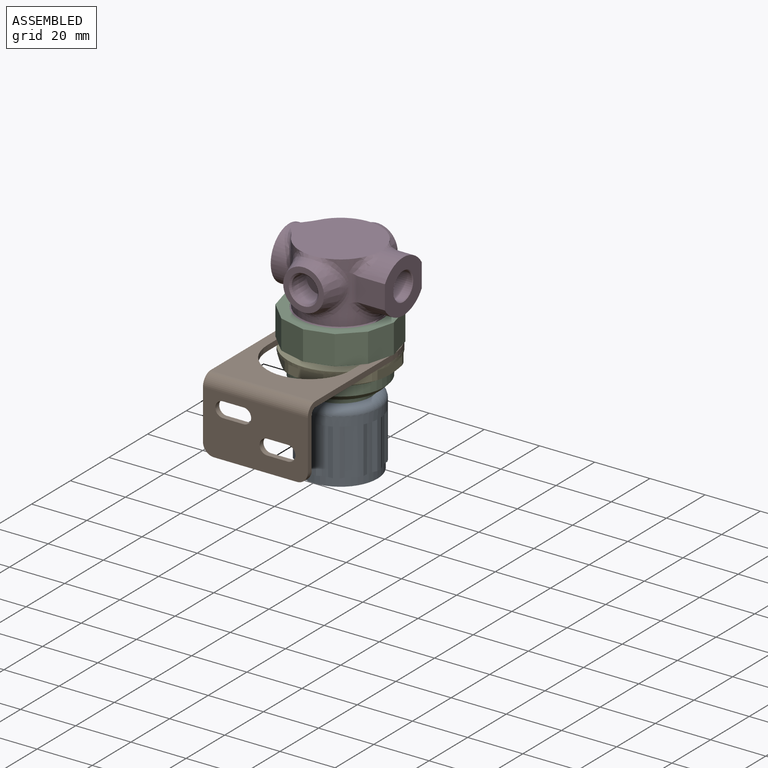
[diagram: assembled view]
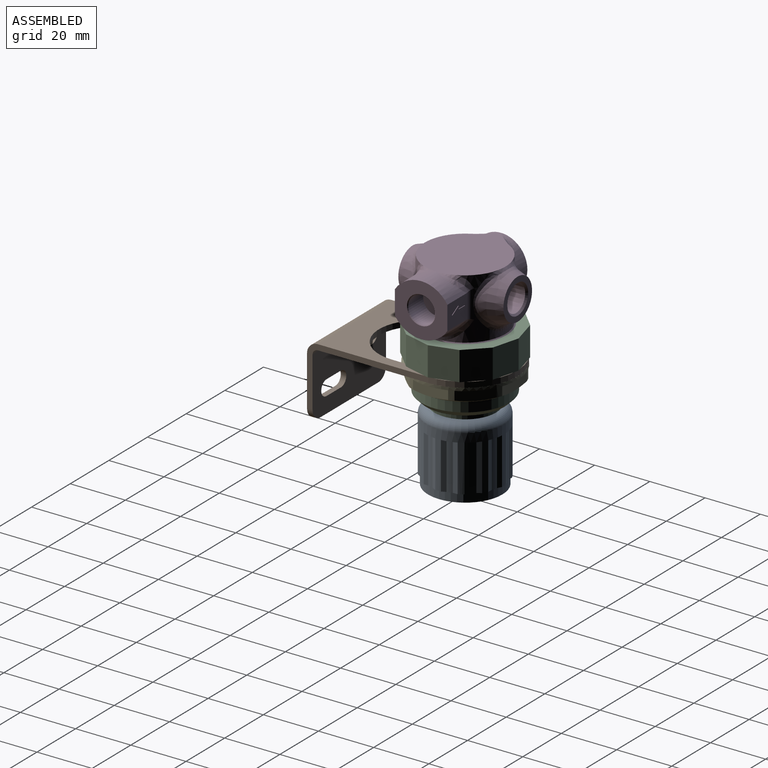
[diagram: assembled view, second angle]
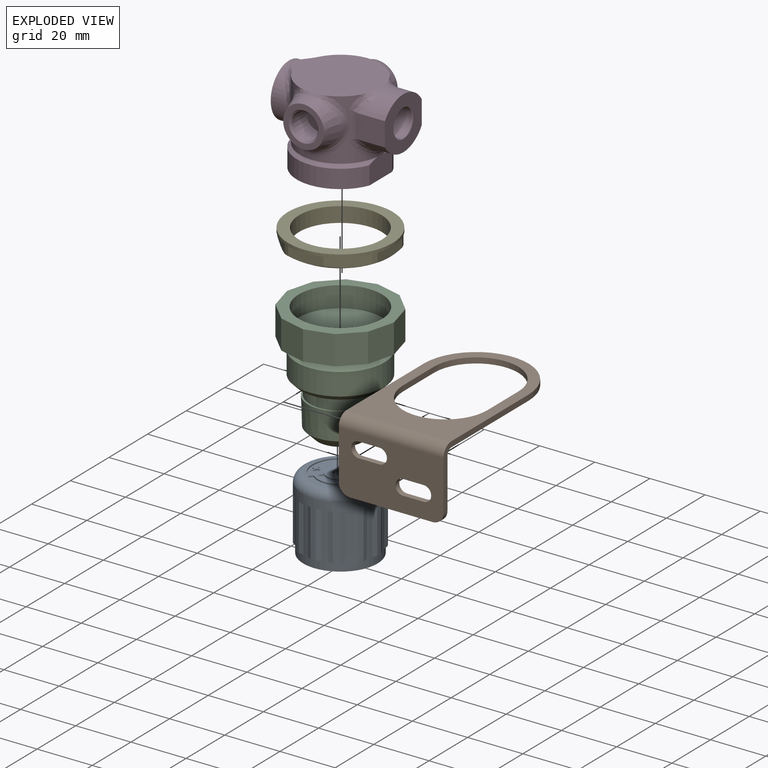
[diagram: exploded view]
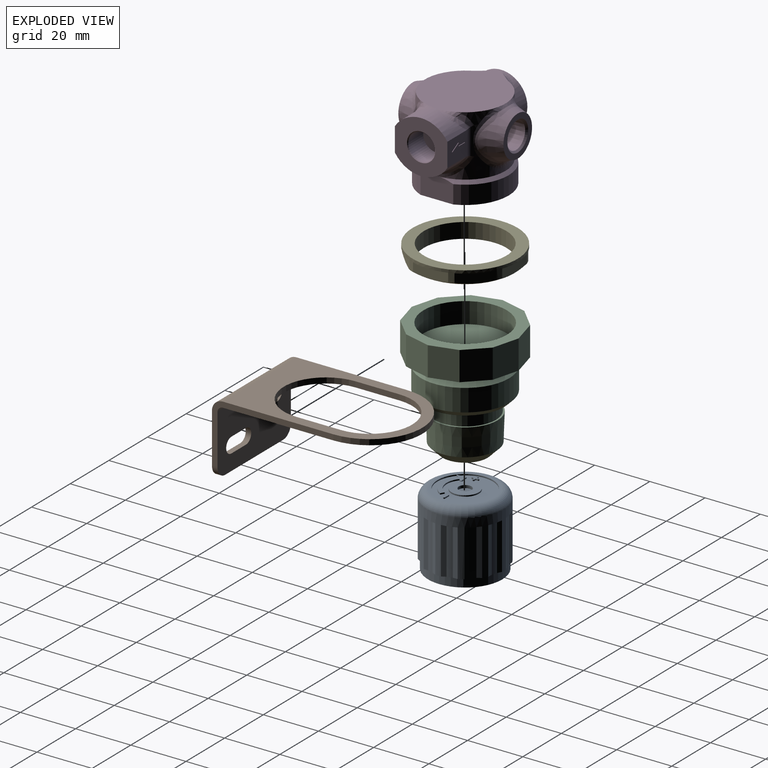
[diagram: exploded view, second angle]
ASSEMBLY  parts=5 mates=4
PART A: 86 faces, bbox 30.5x30.5x26.2 mm
  f0: cylinder r=2.29mm len=4.57mm, axis (0,0,1), area 14.4mm2, adj f61,f85
  f1: cylinder r=6.73mm len=10.15mm, axis (0,0,-1), area 5.3mm2, adj f9,f79,f83,f84
  f2: cylinder r=8.26mm len=12.46mm, axis (0,0,-1), area 6.5mm2, adj f9,f79,f80,f84
  f3: cylinder r=0.33mm len=0.66mm, axis (0,0,-1), area 0.5mm2, adj f9,f74,f75,f78
  f4: cylinder r=4.96mm len=9.91mm, axis (0,0,1), area 14mm2, adj f9,f61
  f5: cylinder r=10.04mm len=20.07mm, axis (0,0,1), area 28.4mm2, adj f9,f12
  f6: torus R=10.91mm, axis (0,0,-1), area 406.1mm2, adj f7,f12
  f7: cylinder r=14.1mm len=28.19mm, axis (0,0,-1), area 692.5mm2, adj f6,f11,f13,f15,f16,f17,f19,f20
  f8: cylinder r=13.46mm len=26.92mm, axis (0,0,-1), area 253.7mm2, adj f10,f11
  f9: plane 20.07x20.07mm, normal (0,0,1), area 208.7mm2, adj f1,f2,f3,f4,f5,f62,f63,f64
  f10: plane 26.92x26.92mm, normal (0,0,-1), area 569.2mm2, adj f8
  f11: plane 28.19x28.19mm, normal (0,0,-1), area 28.1mm2, adj f7,f8,f13,f14,f15,f17,f18,f19
  f12: plane 21.83x21.83mm, normal (0,0,1), area 57.9mm2, adj f5,f6
  f13: plane 16.89x1.49mm, normal (-0.47,0.88,0), area 28.5mm2, adj f7,f11,f14,f16
  f14: cylinder r=13.5mm len=16.89mm, axis (0,0,1), area 34.2mm2, adj f11,f13,f15,f16
  f15: plane 16.89x1.69mm, normal (-0.03,1,0), area 28.5mm2, adj f7,f11,f14,f16
  f16: plane 5.14x1.38mm, normal (0,0,-1), area 2.2mm2, adj f7,f13,f14,f15
  f17: plane 16.89x1.43mm, normal (-0.85,0.53,0), area 28.5mm2, adj f7,f11,f18,f20
  f18: cylinder r=13.5mm len=16.89mm, axis (0,0,1), area 34.2mm2, adj f11,f17,f19,f20
  f19: plane 16.89x1.43mm, normal (-0.53,0.85,0), area 28.5mm2, adj f7,f11,f18,f20
  f20: plane 3.76x3.76mm, normal (0,0,-1), area 2.2mm2, adj f7,f17,f18,f19
  f21: plane 16.89x1.69mm, normal (-1,0.03,0), area 28.5mm2, adj f7,f11,f22,f24
  f22: cylinder r=13.5mm len=16.89mm, axis (0,0,1), area 34.2mm2, adj f11,f21,f23,f24
  f23: plane 16.89x1.49mm, normal (-0.88,0.47,0), area 28.5mm2, adj f7,f11,f22,f24
  f24: plane 5.14x1.38mm, normal (0,0,-1), area 2.2mm2, adj f7,f21,f22,f23
  f25: plane 16.89x1.49mm, normal (-0.88,-0.47,0), area 28.5mm2, adj f7,f11,f26,f28
  f26: cylinder r=13.5mm len=16.89mm, axis (0,0,1), area 34.2mm2, adj f11,f25,f27,f28
  f27: plane 16.89x1.69mm, normal (-1,-0.03,0), area 28.5mm2, adj f7,f11,f26,f28
  f28: plane 5.14x1.38mm, normal (0,0,-1), area 2.2mm2, adj f7,f25,f26,f27
  f29: plane 16.89x1.43mm, normal (-0.53,-0.85,0), area 28.5mm2, adj f7,f11,f30,f32
  f30: cylinder r=13.5mm len=16.89mm, axis (0,0,1), area 34.2mm2, adj f11,f29,f31,f32
  f31: plane 16.89x1.43mm, normal (-0.85,-0.53,0), area 28.5mm2, adj f7,f11,f30,f32
  f32: plane 3.76x3.76mm, normal (0,0,-1), area 2.2mm2, adj f7,f29,f30,f31
  f33: plane 16.89x1.69mm, normal (-0.03,-1,0), area 28.5mm2, adj f7,f11,f34,f36
  f34: cylinder r=13.5mm len=16.89mm, axis (0,0,1), area 34.2mm2, adj f11,f33,f35,f36
  f35: plane 16.89x1.49mm, normal (-0.47,-0.88,0), area 28.5mm2, adj f7,f11,f34,f36
  f36: plane 5.14x1.38mm, normal (0,0,-1), area 2.2mm2, adj f7,f33,f34,f35
  f37: plane 16.89x1.49mm, normal (0.47,-0.88,0), area 28.5mm2, adj f7,f11,f38,f40
  f38: cylinder r=13.5mm len=16.89mm, axis (0,0,1), area 34.2mm2, adj f11,f37,f39,f40
  f39: plane 16.89x1.69mm, normal (0.03,-1,0), area 28.5mm2, adj f7,f11,f38,f40
  f40: plane 5.14x1.38mm, normal (0,0,-1), area 2.2mm2, adj f7,f37,f38,f39
  f41: plane 16.89x1.43mm, normal (0.85,-0.53,0), area 28.5mm2, adj f7,f11,f42,f44
  f42: cylinder r=13.5mm len=16.89mm, axis (0,0,1), area 34.2mm2, adj f11,f41,f43,f44
  f43: plane 16.89x1.43mm, normal (0.53,-0.85,0), area 28.5mm2, adj f7,f11,f42,f44
  f44: plane 3.76x3.76mm, normal (0,0,-1), area 2.2mm2, adj f7,f41,f42,f43
  f45: plane 16.89x1.69mm, normal (1,-0.03,0), area 28.5mm2, adj f7,f11,f46,f48
  f46: cylinder r=13.5mm len=16.89mm, axis (0,0,1), area 34.2mm2, adj f11,f45,f47,f48
  f47: plane 16.89x1.49mm, normal (0.88,-0.47,0), area 28.5mm2, adj f7,f11,f46,f48
  f48: plane 5.14x1.38mm, normal (0,0,-1), area 2.2mm2, adj f7,f45,f46,f47
  f49: plane 16.89x1.49mm, normal (0.88,0.47,0), area 28.5mm2, adj f7,f11,f50,f52
  f50: cylinder r=13.5mm len=16.89mm, axis (0,0,1), area 34.2mm2, adj f11,f49,f51,f52
  f51: plane 16.89x1.69mm, normal (1,0.03,0), area 28.5mm2, adj f7,f11,f50,f52
  f52: plane 5.14x1.38mm, normal (0,0,-1), area 2.2mm2, adj f7,f49,f50,f51
  f53: plane 16.89x1.43mm, normal (0.53,0.85,0), area 28.5mm2, adj f7,f11,f54,f56
  f54: cylinder r=13.5mm len=16.89mm, axis (0,0,1), area 34.2mm2, adj f11,f53,f55,f56
  f55: plane 16.89x1.43mm, normal (0.85,0.53,0), area 28.5mm2, adj f7,f11,f54,f56
  f56: plane 3.76x3.76mm, normal (0,0,-1), area 2.2mm2, adj f7,f53,f54,f55
  f57: plane 16.89x1.69mm, normal (0.03,1,0), area 28.5mm2, adj f7,f11,f58,f60
  f58: cylinder r=13.5mm len=16.89mm, axis (0,0,1), area 34.2mm2, adj f11,f57,f59,f60
  f59: plane 16.89x1.49mm, normal (0.47,0.88,0), area 28.5mm2, adj f7,f11,f58,f60
  f60: plane 5.14x1.38mm, normal (0,0,-1), area 2.2mm2, adj f7,f57,f58,f59
  f61: plane 9.91x9.91mm, normal (0,0,1), area 60.7mm2, adj f0,f4
  f62: plane 2.06x0.45mm, normal (0,1,0), area 0.9mm2, adj f9,f63,f65,f66
  f63: cylinder r=0.33mm len=0.66mm, axis (0,0,-1), area 0.5mm2, adj f9,f62,f64,f66
  f64: plane 2.06x0.45mm, normal (0,-1,0), area 0.9mm2, adj f9,f63,f65,f66
  f65: cylinder r=0.33mm len=0.66mm, axis (0,0,-1), area 0.5mm2, adj f9,f62,f64,f66
  f66: plane 2.72x0.66mm, normal (0,0,1), area 1.7mm2, adj f62,f63,f64,f65
  f67: plane 0.7x0.45mm, normal (0,-1,0), area 0.3mm2, adj f9,f68,f77,f78
  f68: plane 0.7x0.45mm, normal (1,0,0), area 0.3mm2, adj f9,f67,f69,f78
  f69: cylinder r=0.33mm len=0.66mm, axis (0,0,-1), area 0.5mm2, adj f9,f68,f70,f78
  f70: plane 0.7x0.45mm, normal (-1,0,0), area 0.3mm2, adj f9,f69,f71,f78
  f71: plane 0.7x0.45mm, normal (0,-1,0), area 0.3mm2, adj f9,f70,f72,f78
  f72: cylinder r=0.33mm len=0.66mm, axis (0,0,-1), area 0.5mm2, adj f9,f71,f73,f78
  f73: plane 0.7x0.45mm, normal (0,1,0), area 0.3mm2, adj f9,f72,f74,f78
  f74: plane 0.7x0.45mm, normal (-1,0,0), area 0.3mm2, adj f3,f9,f73,f78
  f75: plane 0.7x0.45mm, normal (1,0,0), area 0.3mm2, adj f3,f9,f76,f78
  f76: plane 0.7x0.45mm, normal (0,1,0), area 0.3mm2, adj f9,f75,f77,f78
  f77: cylinder r=0.33mm len=0.66mm, axis (0,0,-1), area 0.5mm2, adj f9,f67,f76,f78
  f78: plane 2.72x2.72mm, normal (0,0,1), area 3mm2, adj f3,f67,f68,f69,f70,f71,f72,f73
  f79: plane 1.33x0.77mm, normal (-0.5,-0.87,0), area 0.7mm2, adj f1,f2,f9,f84
  f80: plane 1.26x1.06mm, normal (-0.77,0.64,0), area 0.7mm2, adj f2,f9,f81,f84
  f81: plane 3.4x0.45mm, normal (1,0.09,0), area 1.5mm2, adj f9,f80,f82,f84
  f82: plane 3.4x0.45mm, normal (0.09,-1,0), area 1.5mm2, adj f9,f81,f83,f84
  f83: plane 1.26x1.06mm, normal (-0.77,0.64,0), area 0.7mm2, adj f1,f9,f82,f84
  f84: plane 13.82x4.9mm, normal (0,0,1), area 25.8mm2, adj f1,f2,f79,f80,f81,f82,f83
  f85: plane 4.57x4.57mm, normal (0,0,1), area 16.4mm2, adj f0
PART B: 24 faces, bbox 38x63x26 mm
  f0: cylinder r=2.75mm len=5.5mm, axis (0,-1,0), area 17.3mm2, adj f13,f14,f20,f21
  f1: cylinder r=2.75mm len=5.5mm, axis (0,-1,0), area 17.3mm2, adj f13,f14,f17,f18
  f2: cylinder r=15.25mm len=30.5mm, axis (0,0,-1), area 95.8mm2, adj f3,f4,f9,f10
  f3: plane 59x38mm, normal (0,0,1), area 868.4mm2, adj f2,f5,f6,f7,f8,f9,f10,f12
  f4: plane 59x38mm, normal (0,0,-1), area 868.4mm2, adj f2,f5,f6,f7,f8,f9,f10,f11
  f5: plane 44x22mm, normal (-1,0,0), area 125.4mm2, adj f3,f4,f7,f11,f12,f13,f14,f23
  f6: plane 44x22mm, normal (1,0,0), area 125.4mm2, adj f3,f4,f7,f11,f12,f13,f14,f22
  f7: cylinder r=19mm len=38mm, axis (0,0,-1), area 119.4mm2, adj f3,f4,f5,f6
  f8: cylinder r=15.25mm len=30.5mm, axis (0,0,-1), area 95.8mm2, adj f3,f4,f9,f10
  f9: plane 16x2mm, normal (-1,0,0), area 32mm2, adj f2,f3,f4,f8
  f10: plane 16x2mm, normal (1,0,0), area 32mm2, adj f2,f3,f4,f8
  f11: cylinder r=4mm len=38mm, axis (-1,0,0), area 238.8mm2, adj f4,f5,f6,f13
  f12: cylinder r=2mm len=38mm, axis (-1,0,0), area 119.4mm2, adj f3,f5,f6,f14
  f13: plane 38x22mm, normal (0,1,0), area 699.6mm2, adj f0,f1,f5,f6,f11,f15,f16,f17
  f14: plane 38x22mm, normal (0,-1,0), area 699.6mm2, adj f0,f1,f5,f6,f12,f15,f16,f17
  f15: plane 30x2mm, normal (0,0,1), area 60mm2, adj f13,f14,f22,f23
  f16: cylinder r=2.75mm len=5.5mm, axis (0,-1,0), area 17.3mm2, adj f13,f14,f17,f18
  f17: plane 7.46x2mm, normal (0,0,-1), area 14.9mm2, adj f1,f13,f14,f16
  f18: plane 7.46x2mm, normal (0,0,1), area 14.9mm2, adj f1,f13,f14,f16
  f19: cylinder r=2.75mm len=5.5mm, axis (0,-1,0), area 17.3mm2, adj f13,f14,f20,f21
  f20: plane 7.46x2mm, normal (0,0,-1), area 14.9mm2, adj f0,f13,f14,f19
  f21: plane 7.46x2mm, normal (0,0,1), area 14.9mm2, adj f0,f13,f14,f19
  f22: cylinder r=4mm len=4mm, axis (0,-1,0), area 12.6mm2, adj f6,f13,f14,f15
  f23: cylinder r=4mm len=4mm, axis (0,-1,0), area 12.6mm2, adj f5,f13,f14,f15
PART C: 29 faces, bbox 38.7x38.7x42.1 mm
  f0: cylinder r=4mm len=10mm, axis (0,0,1), area 251.3mm2, adj f26,f28
  f1: cylinder r=15.1mm len=30.2mm, axis (0,0,-1), area 715.4mm2, adj f10,f27
  f2: torus R=15.67mm, axis (0,0,1), area 220.6mm2, adj f9,f11
  f3: cone r=8.16mm half-angle=45deg, axis (0,0,-1), area 284mm2, adj f4,f26
  f4: cone r=11.42mm half-angle=2deg, axis (0,0,-1), area 727.8mm2, adj f3,f25
  f5: cylinder r=11.19mm len=22.37mm, axis (0,0,-1), area 351.4mm2, adj f24,f25
  f6: cone r=14.15mm half-angle=45deg, axis (0,0,-1), area 247.8mm2, adj f7,f24
  f7: cylinder r=16mm len=32mm, axis (0,0,-1), area 809.3mm2, adj f6,f8
  f8: cone r=16mm half-angle=45deg, axis (0,0,1), area 247.8mm2, adj f7,f9
  f9: cylinder r=14.15mm len=28.3mm, axis (0,0,-1), area 2.7mm2, adj f2,f8
  f10: plane 38.73x38.73mm, normal (0,0,-1), area 408.7mm2, adj f1,f12,f13,f14,f15,f16,f17,f18
  f11: plane 38.73x38.73mm, normal (0,0,1), area 353.6mm2, adj f2,f12,f13,f14,f15,f16,f17,f18
  f12: plane 10.54x9.68mm, normal (0.26,0.97,0), area 105.7mm2, adj f10,f11,f13,f23
  f13: plane 10.54x7.09mm, normal (0.71,0.71,0), area 105.7mm2, adj f10,f11,f12,f14
  f14: plane 10.54x9.68mm, normal (0.97,0.26,0), area 105.7mm2, adj f10,f11,f13,f15
  f15: plane 10.54x9.68mm, normal (0.97,-0.26,0), area 105.7mm2, adj f10,f11,f14,f16
  f16: plane 10.54x7.09mm, normal (0.71,-0.71,0), area 105.7mm2, adj f10,f11,f15,f17
  f17: plane 10.54x9.68mm, normal (0.26,-0.97,0), area 105.7mm2, adj f10,f11,f16,f18
  f18: plane 10.54x9.68mm, normal (-0.26,-0.97,0), area 105.7mm2, adj f10,f11,f17,f19
  f19: plane 10.54x7.09mm, normal (-0.71,-0.71,0), area 105.7mm2, adj f10,f11,f18,f20
  f20: plane 10.54x9.68mm, normal (-0.97,-0.26,0), area 105.7mm2, adj f10,f11,f19,f21
  f21: plane 10.54x9.68mm, normal (-0.97,0.26,0), area 105.7mm2, adj f10,f11,f20,f22
  f22: plane 10.54x7.09mm, normal (-0.71,0.71,0), area 105.7mm2, adj f10,f11,f21,f23
  f23: plane 10.54x9.68mm, normal (-0.26,0.97,0), area 105.7mm2, adj f10,f11,f12,f22
  f24: plane 28.3x28.3mm, normal (0,0,1), area 236mm2, adj f5,f6
  f25: plane 23.54x23.54mm, normal (0,0,-1), area 42.1mm2, adj f4,f5
  f26: plane 16.31x16.31mm, normal (0,0,1), area 158.7mm2, adj f0,f3
  f27: plane 30.2x30.2mm, normal (0,0,-1), area 716.3mm2, adj f1
  f28: plane 8x8mm, normal (0,0,1), area 50.3mm2, adj f0
PART D: 60 faces, bbox 43.5x40.2x35.2 mm
  f0: cone r=4.52mm half-angle=1.8deg, axis (0,-1,0), area 214.2mm2, adj f1,f47
  f1: cone r=4.75mm half-angle=45deg, axis (0,-1,0), area 28.8mm2, adj f0,f18
  f2: cone r=5.38mm half-angle=45deg, axis (0,1,0), area 28.8mm2, adj f3,f19
  f3: cone r=4.75mm half-angle=1.8deg, axis (0,1,0), area 214.2mm2, adj f2,f46
  f4: cone r=4.87mm half-angle=45deg, axis (-1,0,0), area 11.8mm2, adj f5,f30
  f5: cylinder r=4.87mm len=9.73mm, axis (1,0,0), area 236.4mm2, adj f4,f45
  f6: cylinder r=4.87mm len=9.73mm, axis (1,0,0), area 236.4mm2, adj f7,f44
  f7: cone r=5.13mm half-angle=45deg, axis (1,0,0), area 11.8mm2, adj f6,f29
  f8: cone r=12mm half-angle=18deg, axis (0,-1,0), area 250.8mm2, adj f19,f53,f57
  f9: cone r=12mm half-angle=18deg, axis (0,1,0), area 251mm2, adj f18,f56,f58
  f10: cylinder r=9.52mm len=19.05mm, axis (1,0,0), area 193.5mm2, adj f23,f30,f48,f59
  f11: cylinder r=15.8mm len=29.29mm, axis (0,0,-1), area 249.3mm2, adj f24,f25,f40,f43
  f12: cone r=15.8mm half-angle=45deg, axis (0,0,1), area 65.5mm2, adj f16,f20,f31,f40,f42,f43
  f13: cylinder r=14.67mm len=29.08mm, axis (0,0,-1), area 145.6mm2, adj f24,f31,f54,f57,f59
  f14: cylinder r=14.67mm len=7.41mm, axis (0,0,-1), area 37.3mm2, adj f23,f57,f59
  f15: cylinder r=14.67mm len=7.41mm, axis (0,0,-1), area 37.3mm2, adj f23,f58,f59
  f16: cylinder r=14.67mm len=29.08mm, axis (0,0,-1), area 145.6mm2, adj f12,f31,f55,f58,f59
  f17: cylinder r=14.67mm len=7.11mm, axis (0,0,-1), area 27.5mm2, adj f23,f51,f54,f57
  f18: plane 14.8x14.8mm, normal (0,-1,0), area 80.9mm2, adj f1,f9
  f19: plane 14.8x14.8mm, normal (0,1,0), area 80.9mm2, adj f2,f8
  f20: cylinder r=15.8mm len=29.29mm, axis (0,0,-1), area 249.3mm2, adj f12,f25,f40,f43
  f21: plane 10.25x8.74mm, normal (0,-1,0), area 76.6mm2, adj f26,f28,f29,f31,f32,f33,f34,f35
  f22: cylinder r=14.67mm len=7.11mm, axis (0,0,-1), area 27.5mm2, adj f23,f52,f55,f58
  f23: plane 34.73x31.43mm, normal (0,0,-1), area 692.7mm2, adj f10,f14,f15,f17,f22,f48,f49,f50
  f24: cone r=15.8mm half-angle=45deg, axis (0,0,1), area 65.4mm2, adj f11,f13,f31,f40,f43,f59
  f25: plane 31.6x29.29mm, normal (0,0,1), area 765.8mm2, adj f11,f20,f40,f43
  f26: cylinder r=11.3mm len=19.05mm, axis (-1,0,0), area 181.5mm2, adj f21,f27,f29,f49,f50,f51,f52
  f27: plane 10.25x8.74mm, normal (0,1,0), area 87.8mm2, adj f26,f28,f29,f31,f51,f54
  f28: cylinder r=11.3mm len=19.05mm, axis (-1,0,0), area 221.6mm2, adj f21,f27,f29,f31
  f29: plane 19.05x19.04mm, normal (1,0,0), area 221.4mm2, adj f7,f21,f26,f27,f28
  f30: plane 19.05x19.05mm, normal (-1,0,0), area 202.3mm2, adj f4,f10
  f31: bspline ~21.08x9.23mm, area 107mm2, adj f12,f13,f16,f21,f24,f27,f28,f40
  f32: plane 1.16x0.2mm, normal (-1,0,0), area 0.2mm2, adj f21,f33,f38,f39
  f33: plane 3.3x0.2mm, normal (0,0,-1), area 0.7mm2, adj f21,f32,f34,f39
  f34: plane 1.5x0.2mm, normal (-1,0,0), area 0.3mm2, adj f21,f33,f35,f39
  f35: plane 3.3x0.2mm, normal (0,0,1), area 0.7mm2, adj f21,f34,f36,f39
  f36: plane 1.16x0.2mm, normal (-1,0,0), area 0.2mm2, adj f21,f35,f37,f39
  f37: plane 3.3x1.91mm, normal (0.5,0,0.87), area 0.8mm2, adj f21,f36,f38,f39
  f38: plane 3.3x1.91mm, normal (0.5,0,-0.87), area 0.8mm2, adj f21,f32,f37,f39
  f39: plane 6.6x3.81mm, normal (0,-1,0), area 11.2mm2, adj f32,f33,f34,f35,f36,f37,f38
  f40: plane 12.45x8.38mm, normal (1,0,0), area 87.8mm2, adj f11,f12,f20,f24,f25,f31,f41
  f41: plane 1.77x0.04mm, normal (0,0,1), area 0mm2, adj f31,f40
  f42: plane 3.16x0.19mm, normal (0,0,1), area 0.1mm2, adj f12,f43,f59
  f43: plane 12.46x8.38mm, normal (-1,0,0), area 87.8mm2, adj f11,f12,f20,f24,f25,f42,f59
  f44: plane 9.73x9.73mm, normal (1,0,0), area 74.4mm2, adj f6
  f45: plane 9.73x9.73mm, normal (-1,0,0), area 74.4mm2, adj f5
  f46: plane 9.03x9.03mm, normal (0,1,0), area 64.1mm2, adj f3
  f47: plane 9.03x9.03mm, normal (0,-1,0), area 64.1mm2, adj f0
  f48: cylinder r=14.67mm len=0.52mm, axis (0,0,1), area 0mm2, adj f10,f23
  f49: bspline ~7.55x3.64mm, area 10.2mm2, adj f23,f26,f51
  f50: bspline ~7.55x3.64mm, area 10.2mm2, adj f23,f26,f52
  f51: bspline ~5.92x5.15mm, area 17.4mm2, adj f17,f26,f27,f49,f54
  f52: bspline ~5.92x5.15mm, area 17.4mm2, adj f21,f22,f26,f50,f55
  f53: bspline ~10.94x2.74mm, area 27.4mm2, adj f8,f23,f57
  f54: cylinder r=3.3mm len=10.29mm, axis (0,0,-1), area 23.4mm2, adj f13,f17,f27,f31,f51,f57
  f55: cylinder r=3.3mm len=10.29mm, axis (0,0,-1), area 23.4mm2, adj f16,f21,f22,f31,f52,f58
  f56: bspline ~10.94x2.74mm, area 27.4mm2, adj f9,f23,f58
  f57: bspline ~21.32x20.74mm, area 143mm2, adj f8,f13,f14,f17,f53,f54,f59
  f58: bspline ~21.3x20.74mm, area 143mm2, adj f9,f15,f16,f22,f55,f56,f59
  f59: bspline ~25.65x20.95mm, area 217.2mm2, adj f10,f13,f14,f15,f16,f23,f24,f42
PART E: 21 faces, bbox 38.6x38.6x6.1 mm
  f0: cylinder r=15mm len=30mm, axis (0,0,-1), area 518.4mm2, adj f3,f4
  f1: cone r=16.9mm half-angle=60deg, axis (0,0,-1), area 192.2mm2, adj f2,f4,f5,f7,f9,f11,f13,f15
  f2: cylinder r=19mm len=38mm, axis (0,0,-1), area 180.5mm2, adj f1,f3,f5,f6,f7,f8,f9,f10
  f3: plane 38x38mm, normal (0,0,-1), area 427.3mm2, adj f0,f2
  f4: plane 33.8x33.8mm, normal (0,0,1), area 190.4mm2, adj f0,f1
  f5: plane 9.01x9.01mm, normal (0.71,-0.71,0), area 46mm2, adj f1,f2,f6
  f6: plane 9.01x9.01mm, normal (0,0,1), area 9.4mm2, adj f2,f5
  f7: plane 13.39x4.47mm, normal (0,-1,0), area 46mm2, adj f1,f2,f8
  f8: plane 12.74x1.1mm, normal (0,0,1), area 9.4mm2, adj f2,f7
  f9: plane 9.01x9.01mm, normal (-0.71,-0.71,0), area 46mm2, adj f1,f2,f10
  f10: plane 9.01x9.01mm, normal (0,0,1), area 9.4mm2, adj f2,f9
  f11: plane 12.74x3.82mm, normal (-1,0,0), area 46mm2, adj f1,f2,f12
  f12: plane 12.74x1.1mm, normal (0,0,1), area 9.4mm2, adj f2,f11
  f13: plane 9.01x9.01mm, normal (-0.71,0.71,0), area 46mm2, adj f1,f2,f14
  f14: plane 9.01x9.01mm, normal (0,0,1), area 9.4mm2, adj f2,f13
  f15: plane 13.39x4.47mm, normal (0,1,0), area 46mm2, adj f1,f2,f16
  f16: plane 12.74x1.1mm, normal (0,0,1), area 9.4mm2, adj f2,f15
  f17: plane 9.01x9.01mm, normal (0.71,0.71,0), area 46mm2, adj f1,f2,f18
  f18: plane 9.01x9.01mm, normal (0,0,1), area 9.4mm2, adj f2,f17
  f19: plane 12.74x1.1mm, normal (0,0,1), area 9.4mm2, adj f2,f20
  f20: plane 12.74x3.82mm, normal (1,0,0), area 46mm2, adj f1,f2,f19
PLACE A rot(axis=(0,0,1),180deg) t=(-34.7,0.86,69.48)mm
PLACE B rot(axis=(1,0,0),180deg) t=(-34.7,0.86,111.64)mm
PLACE C rot(axis=(1,0,0),180deg) t=(-34.7,0.86,114.64)mm
PLACE D rot(axis=(1,0,0),180deg) t=(-34.7,0.86,134.96)mm
PLACE E rot(axis=(1,0,0),180deg) t=(-34.7,0.86,109.64)mm
MATE fastened C.f0 <-> D.f11  axis (0,0,1) through (-34.7,0.86,114.64)mm
MATE fastened B.f7 <-> E.f0  axis (0,0,-1) through (-34.7,0.86,109.64)mm
MATE fastened C.f0 <-> A.f0  axis (0,0,-1) through (-34.7,0.86,80.09)mm
MATE fastened B.f7 <-> C.f0  axis (0,0,1) through (-34.7,0.86,111.64)mm
